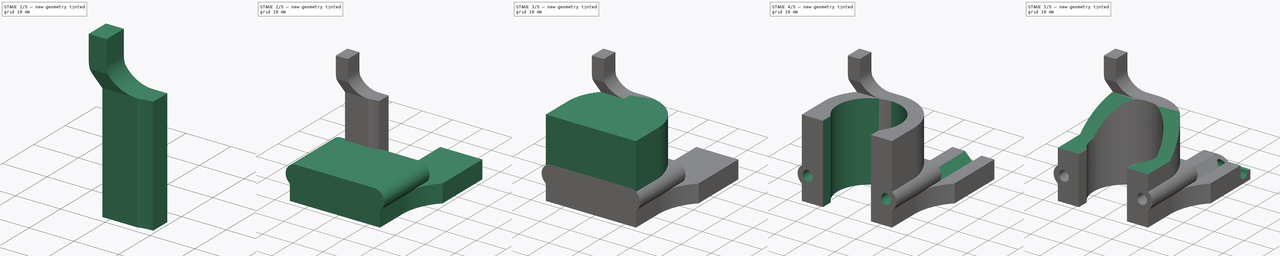
[diagram: build sequence overview — one tinted view per stage of 5, left to right]
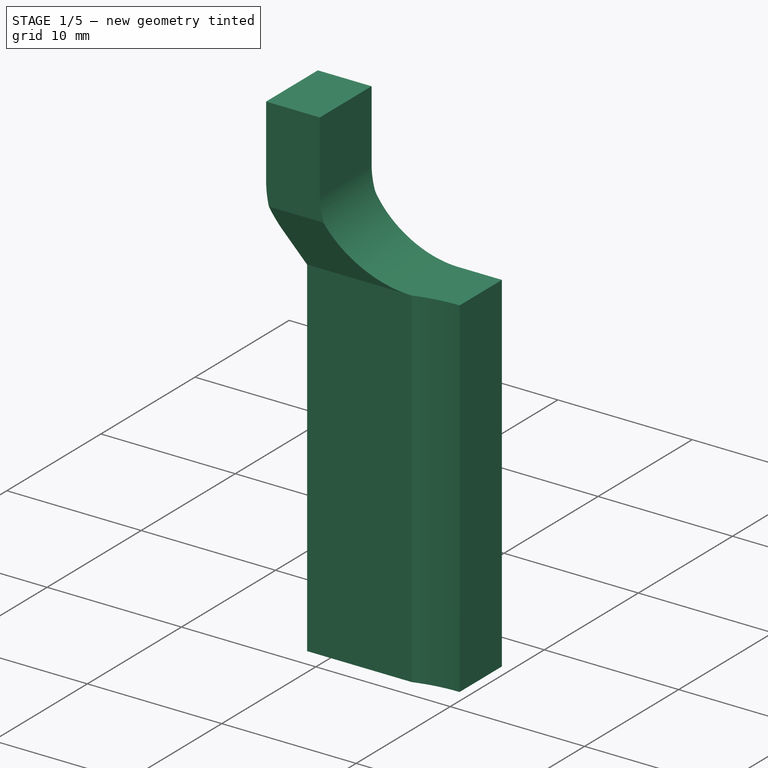
[diagram: stage 1 of 5 — iso view after this stage's code; geometry added in this stage tinted green]
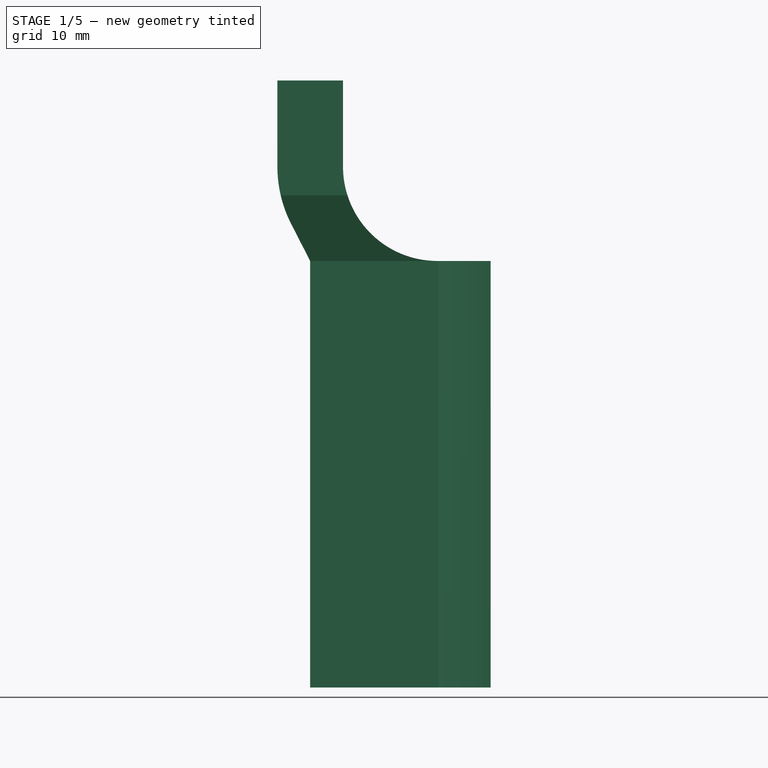
[diagram: stage 1 of 5 — front view after this stage's code; geometry added in this stage tinted green]
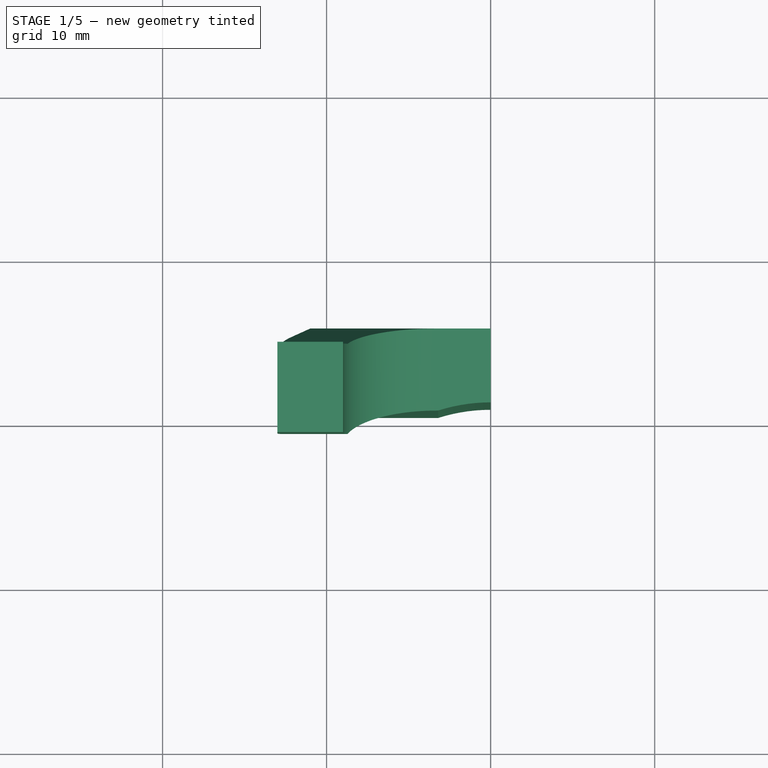
[diagram: stage 1 of 5 — top view after this stage's code; geometry added in this stage tinted green]
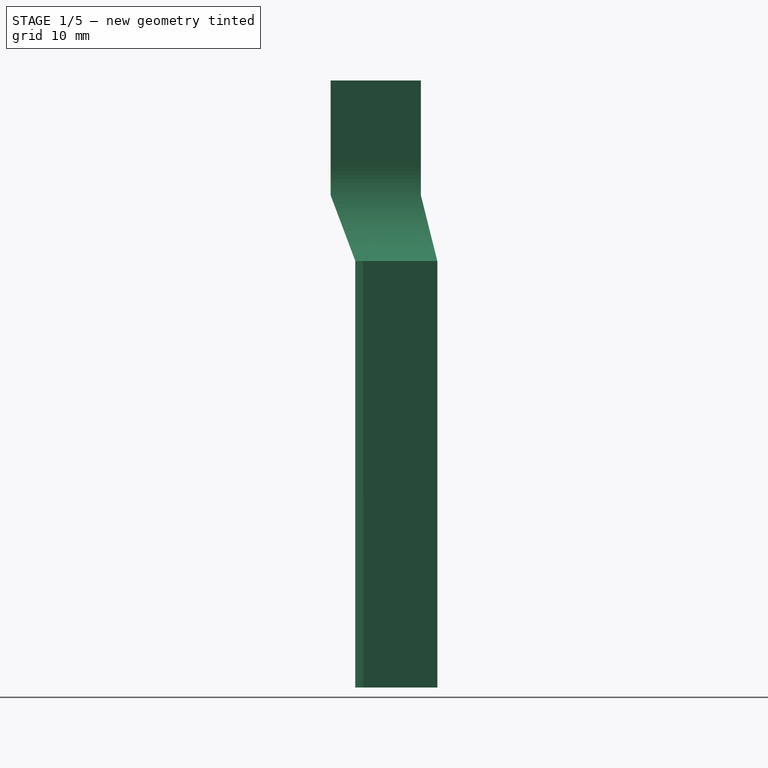
[diagram: stage 1 of 5 — right view after this stage's code; geometry added in this stage tinted green]
FCSTD DOCUMENT  (FreeCAD 0.18R14374 (Git))
Label: 09_550_y-bearing-clamp-tagged
License: All rights reserved
LicenseURL: http://en.wikipedia.org/wiki/All_rights_reserved
objects: Sketcher::SketchObject×12, PartDesign::Pocket×8, PartDesign::Body×5, PartDesign::Pad×4, Spreadsheet::Sheet×1, Part::MultiFuse×1, PartDesign::FeatureBase×1, Part::Fuse×1
note: 44 computed .brp shape members not serialized (recipe doc carries the construction recipe); baked Part::Feature solids carry a one-line shape summary decoded from their .brp

FEATURE [PartDesign::Body] Body005
  BaseFeature = -> Fusion
  Group = -> [BaseFeature,Sketch010,Pocket,Sketch011,Pocket001,Sketch012,Pocket002,Sketch013,Pocket003,Sketch014,Pocket004]
  Origin = -> Origin005
  Tip = -> Pocket004
FEATURE [Sketcher::SketchObject] Sketch015
  AttachmentOffset = pos=(0,0,-19) rot=(0,0,1;0rad)
  MapMode = 5
  Placement = pos=(0,19,0) rot=(1,0,0;1.5708rad)
  Support = -> [XZ_Plane006]
  expr: Constraints[31] = sheet1.BearingCentreX
  expr: Constraints[24] = sheet1.TagTipYStepZlength
  expr: Constraints[26] = sheet1.MainSideX + sheet1.TagBaseDxFromSide
  expr: Constraints[25] = sheet1.TagTipZCurveLength / 2
  expr: Constraints[20] = sheet1.TagTipOffsetX
  expr: Constraints[18] = sheet1.TagTipDx
  expr: Constraints[15] = sheet1.dz
  expr: Constraints[17] = sheet1.TagTipZCurveLength
  expr: AttachmentOffset.Base.z = -sheet1.TagDyFromBase
  expr: Constraints[19] = sheet1.TagDz
  sketch-geometry (11):
    g0: LineSegment StartX=7.84552 StartY=28.25 StartZ=0 EndX=9 EndY=26 EndZ=0
    g1: LineSegment StartX=9 StartY=26 StartZ=0 EndX=9 EndY=0 EndZ=0
    g2: LineSegment StartX=9 StartY=0 StartZ=0 EndX=20 EndY=0 EndZ=0
    g3: LineSegment StartX=20 StartY=0 StartZ=0 EndX=20 EndY=26 EndZ=0
    g4: LineSegment StartX=11 StartY=31.75 StartZ=0 EndX=11 EndY=37 EndZ=0
    g5: LineSegment StartX=11 StartY=37 StartZ=0 EndX=7 EndY=37 EndZ=0
    g6: LineSegment StartX=7 StartY=37 StartZ=0 EndX=7 EndY=31.75 EndZ=0
    g7: ArcOfCircle CenterX=16.75 CenterY=31.75 CenterZ=0 NormalX=0 NormalY=0 NormalZ=1 AngleXU=0 Radius=5.75 StartAngle=3.14159 EndAngle=4.71239
    g8: ArcOfCircle CenterX=14.6668 CenterY=31.75 CenterZ=0 NormalX=0 NormalY=0 NormalZ=1 AngleXU=0 Radius=7.6668 StartAngle=3.14159 EndAngle=3.61567
    g9: LineSegment [constr] StartX=0 StartY=30 StartZ=0 EndX=20 EndY=30 EndZ=0
    g10: LineSegment StartX=16.75 StartY=26 StartZ=0 EndX=20 EndY=26 EndZ=0
  constraints (32):
    c: Coincident(g0,g1)
    c: Coincident(g1,g2)
    c: Coincident(g2,g3)
    c: Coincident(g4,g5)
    c: Coincident(g5,g6)
    c: Tangent(g7,g4) = 1.5708
    c: Vertical(g4)
    c: Vertical(g6)
    c: Vertical(g1)
    c: Vertical(g3)
    c: Horizontal(g5)
    c: Horizontal(g2)
    c: PointOnObject(g1,g-1)
    c: Tangent(g0,g8) = -1.5708
    c: Tangent(g8,g6) = -1.5708
    c: DistanceY(g-1,g3) = 26
    c: Equal(g1,g3)
    c: DistanceY(g0,g6) = 3.5
    c: Distance(g5) = 4
    c: DistanceY(g-1,g5) = 37
    c: Distance(g6,g1) = 2
    c: PointOnObject(g9,g-2)
    c: PointOnObject(g9,g3)
    c: Horizontal(g9)
    c: Distance(g3,g9) = 4
    c: Distance(g0,g9) = 1.75
    c: DistanceX(g-2,g0) = 9
    c: Equal(g6,g4)
    c: Coincident(g10,g3)
    c: Tangent(g10,g7) = -1.5708
    c: Horizontal(g10)
    c: DistanceX(g-2,g2) = 20
FEATURE [PartDesign::Pad] Pad003
  Length = 6.5
  Length2 = 100
  Placement = pos=(0,0,0) rot=(1,0,0;1.5708rad)
  Profile = -> Sketch015
  Reversed = true
  Type = 0
  expr: Length = sheet1.TagDy
FEATURE [Sketcher::SketchObject] Sketch016
  MapMode = 5
  Support = -> [XY_Plane006]
  expr: Constraints[2] = sheet1.BearingCentreY
  expr: Constraints[1] = sheet1.BearingCentreX
  expr: Constraints[0] = sheet1.BearingDiameter / 2
  sketch-geometry (1):
    g0: Circle CenterX=20 CenterY=10.5 CenterZ=0 NormalX=0 NormalY=0 NormalZ=1 AngleXU=0 Radius=10.5
  constraints (3):
    c: Radius(g0) = 10.5
    c: DistanceX(g-2,g0) = 20
    c: DistanceY(g-1,g0) = 10.5
FEATURE [PartDesign::Pocket] Pocket005
  BaseFeature = -> Pad003
  Length = 5
  Length2 = 100
  Placement = pos=(0,0,0) rot=(1,0,0;1.5708rad)
  Profile = -> Sketch016
  Reversed = true
  Type = 1
FEATURE [Sketcher::SketchObject] Sketch017
  MapMode = 5
  Placement = pos=(0,0,0) rot=(0.57735,0.57735,0.57735;2.0944rad)
  Support = -> [YZ_Plane006]
  expr: Constraints[26] = sheet1.TagTipYStepZlength
  expr: Constraints[25] = sheet1.BearingCentreY + sheet1.BearingDiameter / 2 - 0.5
  expr: Constraints[22] = sheet1.TagTipDy
  expr: Constraints[24] = sheet1.TagDz
  expr: Constraints[23] = sheet1.TagTipYStepZlength
  expr: Constraints[21] = sheet1.TagDy
  expr: Constraints[16] = sheet1.dz
  expr: Constraints[8] = sheet1.TagDyFromBase
  sketch-geometry (9):
    g0: LineSegment StartX=20.5 StartY=0 StartZ=0 EndX=20.5 EndY=26 EndZ=0
    g1: LineSegment StartX=20.5 StartY=26 StartZ=0 EndX=19 EndY=30 EndZ=0
    g2: LineSegment StartX=19 StartY=30 StartZ=0 EndX=19 EndY=0 EndZ=0
    g3: LineSegment StartX=19 StartY=0 StartZ=0 EndX=20.5 EndY=0 EndZ=0
    g4: LineSegment StartX=25.5 StartY=26 StartZ=0 EndX=24.5 EndY=30 EndZ=0
    g5: LineSegment StartX=24.5 StartY=30 StartZ=0 EndX=24.5 EndY=37 EndZ=0
    g6: LineSegment StartX=24.5 StartY=37 StartZ=0 EndX=25.5 EndY=37 EndZ=0
    g7: LineSegment StartX=25.5 StartY=37 StartZ=0 EndX=25.5 EndY=26 EndZ=0
    g8: LineSegment [constr] StartX=25.5 StartY=26 StartZ=0 EndX=25.5 EndY=0 EndZ=0
  constraints (27):
    c: Coincident(g0,g1)
    c: Coincident(g1,g2)
    c: Coincident(g2,g3)
    c: Vertical(g2)
    c: Vertical(g0)
    c: Horizontal(g3)
    c: Coincident(g3,g0)
    c: PointOnObject(g2,g-1)
    c: DistanceX(g-2,g2) = 19
    c: Coincident(g4,g5)
    c: Coincident(g5,g6)
    c: Coincident(g6,g7)
    c: Coincident(g4,g7)
    c: Vertical(g5)
    c: Vertical(g7)
    c: Horizontal(g6)
    c: DistanceY(g-1,g4) = 26
    c: PointOnObject(g8,g-1)
    c: Vertical(g8)
    c: Coincident(g8,g4)
    c: Equal(g0,g8)
    c: Distance(g6,g2) = 6.5
    c: DistanceX(g1,g5) = 5.5
    c: DistanceY(g4,g4) = 4
    c: DistanceY(g-1,g6) = 37
    c: DistanceX(g-2,g0) = 20.5
    c: DistanceY(g0,g1) = 4
FEATURE [PartDesign::Pocket] Pocket006
  BaseFeature = -> Pocket005
  Length = 5
  Length2 = 100
  Placement = pos=(0,0,0) rot=(1,0,0;1.5708rad)
  Profile = -> Sketch017
  Reversed = true
  Type = 1
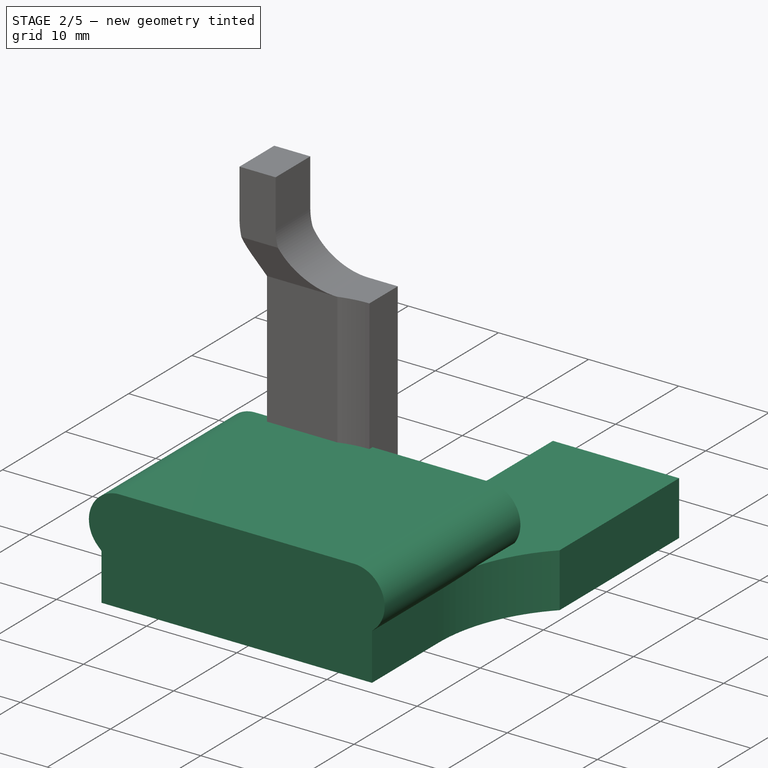
[diagram: stage 2 of 5 — iso view after this stage's code; geometry added in this stage tinted green]
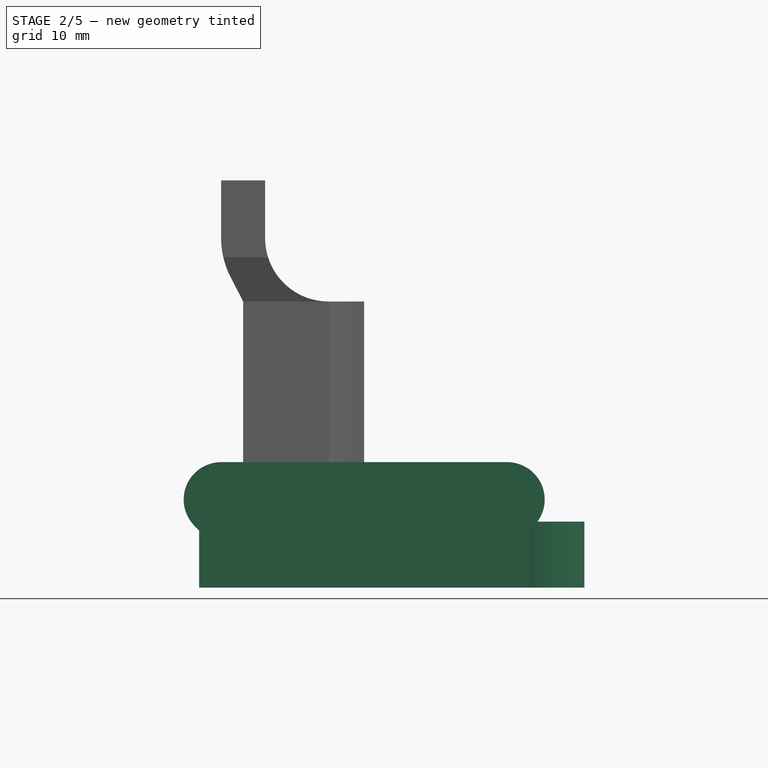
[diagram: stage 2 of 5 — front view after this stage's code; geometry added in this stage tinted green]
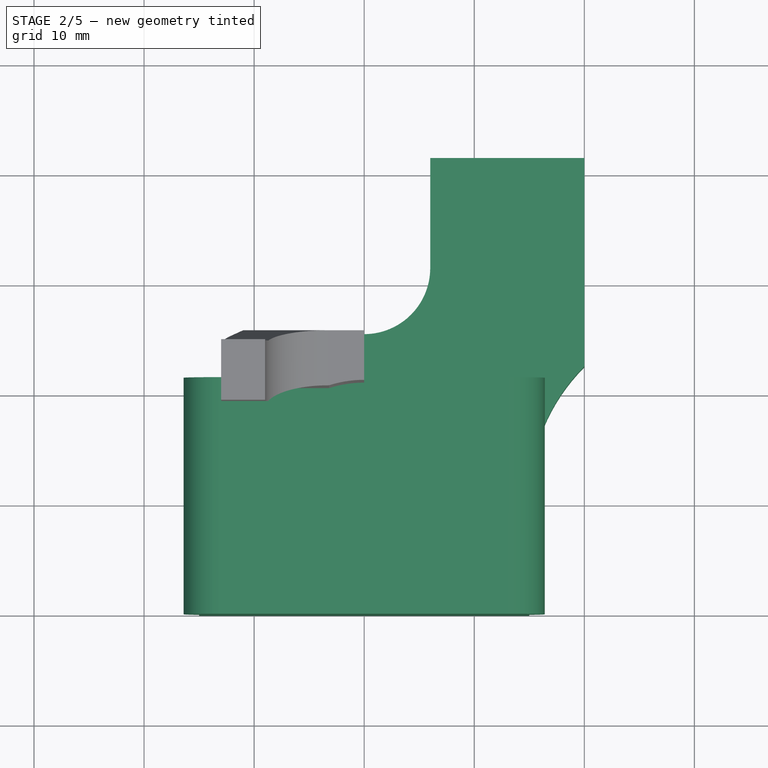
[diagram: stage 2 of 5 — top view after this stage's code; geometry added in this stage tinted green]
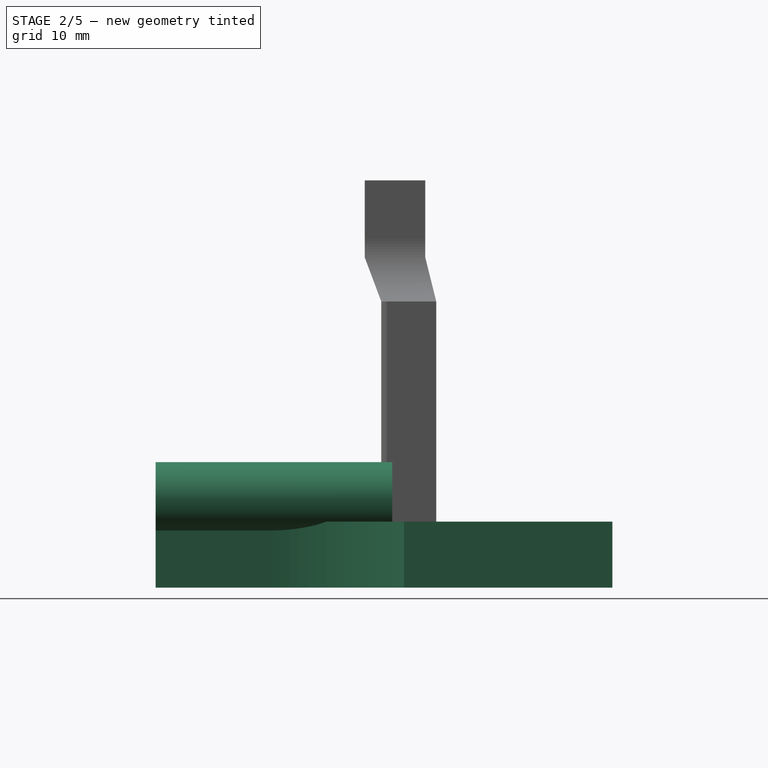
[diagram: stage 2 of 5 — right view after this stage's code; geometry added in this stage tinted green]
FEATURE [PartDesign::Body] Body  label="MainBody"
  Group = -> [Sketch,Pad]
  Origin = -> Origin
  Tip = -> Pad
FEATURE [Sketcher::SketchObject] Sketch006
  MapMode = 5
  Placement = pos=(0,0,0) rot=(1,0,0;1.5708rad)
  Support = -> [XZ_Plane001]
  expr: Constraints[9] = sheet1.Bolt1Z
  expr: Constraints[8] = sheet1.Bolt0Z
  expr: Constraints[6] = sheet1.Bolt1X
  expr: Constraints[0] = sheet1.BoltBossDiameter / 2
  expr: Constraints[7] = sheet1.Bolt0X
  sketch-geometry (6):
    g0: ArcOfCircle CenterX=7 CenterY=8 CenterZ=0 NormalX=0 NormalY=0 NormalZ=1 AngleXU=0 Radius=3.4 StartAngle=1.5708 EndAngle=3.92699
    g1: ArcOfCircle CenterX=33 CenterY=8 CenterZ=0 NormalX=0 NormalY=0 NormalZ=1 AngleXU=0 Radius=3.4 StartAngle=5.49779 EndAngle=7.85398
    g2: LineSegment StartX=10.1917 StartY=0 StartZ=0 EndX=4.59584 EndY=5.59584 EndZ=0
    g3: LineSegment StartX=33 StartY=11.4 StartZ=0 EndX=7 EndY=11.4 EndZ=0
    g4: LineSegment StartX=29.8083 StartY=0 StartZ=0 EndX=35.4042 EndY=5.59584 EndZ=0
    g5: LineSegment StartX=10.1917 StartY=0 StartZ=0 EndX=29.8083 EndY=0 EndZ=0
  constraints (16):
    c: Radius(g1) = 3.4
    c: Tangent(g2,g0) = 1.5708
    c: Tangent(g4,g1) = -1.5708
    c: Angle(g4,g-1) = 2.35619
    c: Coincident(g5,g4)
    c: PointOnObject(g4,g-1)
    c: DistanceX(g-2,g1) = 33
    c: DistanceX(g-2,g0) = 7
    c: DistanceY(g-1,g0) = 8
    c: DistanceY(g-1,g1) = 8
    c: Equal(g0,g1)
    c: Angle(g2,g-1) = 0.785398
    c: Coincident(g2,g5)
    c: Tangent(g0,g3) = -1.5708
    c: Tangent(g3,g1) = -1.5708
    c: PointOnObject(g2,g-1)
FEATURE [PartDesign::Pad] Pad001
  Length = 21.5
  Length2 = 100
  Placement = pos=(0,0,0) rot=(1,0,0;1.5708rad)
  Profile = -> Sketch006
  Reversed = true
  Type = 0
  expr: Length = sheet1.BearingClampBoltFaceY
FEATURE [PartDesign::Body] Body001  label="BoltPairBoss"
  Group = -> [Sketch006,Pad001]
  Origin = -> Origin001
  Tip = -> Pad001
FEATURE [Sketcher::SketchObject] Sketch007  label="SideBoss001"
  MapMode = 5
  Support = -> [XY_Plane002]
  expr: Constraints[12] = sheet1.ShellBaseCut
  expr: Constraints[19] = sheet1.BearingDiameter / 2 + sheet1.BearingCaseShellThickness
  expr: Constraints[4] = sheet1.BearingDiameter / 2
  expr: Constraints[10] = sheet1.BearingCentreY
  expr: Constraints[11] = sheet1.BearingCentreX
  expr: Constraints[41] = sheet1.dy
  sketch-geometry (17):
    g0: ArcOfCircle [constr] CenterX=20 CenterY=10.5 CenterZ=0 NormalX=0 NormalY=0 NormalZ=1 AngleXU=0 Radius=10.5 StartAngle=5.57864 EndAngle=10.1293
    g1: LineSegment [constr] StartX=12 StartY=3.69926 StartZ=0 EndX=12 EndY=0 EndZ=0
    g2: LineSegment [constr] StartX=28 StartY=3.69926 StartZ=0 EndX=28 EndY=0 EndZ=0
    g3: LineSegment [constr] StartX=20 StartY=10.5 StartZ=0 EndX=20 EndY=0 EndZ=0
    g4: ArcOfCircle [constr] CenterX=20 CenterY=10.5 CenterZ=0 NormalX=0 NormalY=0 NormalZ=1 AngleXU=0 Radius=15 StartAngle=0 EndAngle=1.5708
    g5: LineSegment StartX=5 StartY=0 StartZ=0 EndX=5 EndY=10.5 EndZ=0
    g6: LineSegment StartX=35 StartY=0 StartZ=0 EndX=35 EndY=10.5 EndZ=0
    g7: LineSegment [constr] StartX=5 StartY=0 StartZ=0 EndX=12 EndY=0 EndZ=0
    g8: LineSegment [constr] StartX=28 StartY=0 StartZ=0 EndX=35 EndY=0 EndZ=0
    g9: LineSegment StartX=5 StartY=0 StartZ=0 EndX=35 EndY=0 EndZ=0
    g10: ArcOfCircle CenterX=52.0711 CenterY=10.5 CenterZ=0 NormalX=0 NormalY=0 NormalZ=1 AngleXU=0 Radius=17.0711 StartAngle=2.35619 EndAngle=3.14159
    g11: LineSegment [constr] StartX=40 StartY=22.5711 StartZ=0 EndX=47.0711 EndY=29.6421 EndZ=0
    g12: ArcOfCircle CenterX=20 CenterY=10.5 CenterZ=0 NormalX=0 NormalY=0 NormalZ=1 AngleXU=0 Radius=15 StartAngle=1.5708 EndAngle=3.14159
    g13: LineSegment StartX=40 StartY=22.5711 StartZ=0 EndX=40 EndY=41.5 EndZ=0
    g14: LineSegment StartX=40 StartY=41.5 StartZ=0 EndX=26 EndY=41.5 EndZ=0
    g15: LineSegment StartX=26 StartY=41.5 StartZ=0 EndX=26 EndY=31.5 EndZ=0
    g16: ArcOfCircle CenterX=20 CenterY=31.5 CenterZ=0 NormalX=0 NormalY=0 NormalZ=1 AngleXU=0 Radius=6 StartAngle=4.71239 EndAngle=6.28319
  constraints (45):
    c: Vertical(g1)
    c: Vertical(g2)
    c: Coincident(g0,g1)
    c: Coincident(g0,g2)
    c: Radius(g0) = 10.5
    c: Equal(g2,g1)
    c: PointOnObject(g1,g-1)
    c: PointOnObject(g3,g-1)
    c: Coincident(g3,g0)
    c: Symmetric(g1,g2,g3)
    c: DistanceY(g-1,g0) = 10.5
    c: DistanceX(g-2,g0) = 20
    c: Distance(g1,g2) = 16
    c: Coincident(g0,g4)
    c: Vertical(g5)
    c: Vertical(g6)
    c: PointOnObject(g5,g-1)
    c: PointOnObject(g6,g-1)
    c: Tangent(g4,g6) = -1.5708
    c: Radius(g4) = 15
    c: Coincident(g8,g6)
    c: Coincident(g8,g2)
    c: Coincident(g7,g1)
    c: Coincident(g7,g5)
    c: Coincident(g9,g5)
    c: Coincident(g9,g6)
    c: Tangent(g4,g10) = 1.5708
    c: Angle(g11,g-2) = 0.785398
    c: Tangent(g10,g11) = 1.5708
    c: Distance(g10,g6) = 5
    c: Distance(g11) = 10
    c: Coincident(g12,g4)
    c: Tangent(g5,g12) = 1.5708
    c: Tangent(g4,g12) = -1.5708
    c: Coincident(g13,g14)
    c: Coincident(g14,g15)
    c: Vertical(g15)
    c: Vertical(g13)
    c: Horizontal(g14)
    c: Coincident(g10,g13)
    c: Distance(g14) = 14
    c: DistanceY(g-1,g13) = 41.5
    c: Tangent(g4,g16) = 1.5708
    c: Tangent(g16,g15) = 1.5708
    c: PointOnObject(g4,g3)
FEATURE [PartDesign::Pad] Pad002
  Length = 6
  Length2 = 100
  Profile = -> Sketch007
  Type = 0
  expr: Length = sheet1.SideBossDepth
FEATURE [Sketcher::SketchObject] Sketch018  label="BoltPairClearanceCut005"
  AttachmentOffset = pos=(0,0,-41.5) rot=(0,0,1;0rad)
  MapMode = 5
  Placement = pos=(0,41.5,0) rot=(1,0,0;1.5708rad)
  Support = -> [XZ_Plane006]
  expr: Constraints[11] = sheet1.BoltBossDiameter / 2
  expr: Constraints[9] = sheet1.Bolt0X
  expr: Constraints[8] = sheet1.Bolt0Z
  expr: Constraints[19] = sheet1.Bolt1Z
  expr: AttachmentOffset.Base.z = -sheet1.dy
  expr: Constraints[10] = sheet1.M3Clearance / 2
  expr: Constraints[18] = sheet1.Bolt1X
  sketch-geometry (8):
    g0: ArcOfCircle [constr] CenterX=7 CenterY=8 CenterZ=0 NormalX=0 NormalY=0 NormalZ=1 AngleXU=0 Radius=1.65 StartAngle=2.35619 EndAngle=7.06858
    g1: LineSegment [constr] StartX=5.83327 StartY=9.16673 StartZ=0 EndX=6.5 EndY=9.83345 EndZ=0
    g2: LineSegment [constr] StartX=6.5 StartY=9.83345 StartZ=0 EndX=7.5 EndY=9.83345 EndZ=0
    g3: LineSegment [constr] StartX=7.5 StartY=9.83345 StartZ=0 EndX=8.16673 EndY=9.16673 EndZ=0
    g4: ArcOfCircle CenterX=33 CenterY=8 CenterZ=0 NormalX=0 NormalY=0 NormalZ=1 AngleXU=0 Radius=3.4 StartAngle=5.49779 EndAngle=10.2102
    g5: LineSegment StartX=30.5958 StartY=5.59584 StartZ=0 EndX=33 EndY=3.19167 EndZ=0
    g6: LineSegment StartX=33 StartY=3.19167 StartZ=0 EndX=35.4042 EndY=5.59584 EndZ=0
    g7: Circle CenterX=7 CenterY=8 CenterZ=0 NormalX=0 NormalY=0 NormalZ=1 AngleXU=0 Radius=3.4
  constraints (22):
    c: Coincident(g1,g2)
    c: Coincident(g2,g3)
    c: Tangent(g0,g1) = 1.5708
    c: Tangent(g0,g3) = 1.5708
    c: Equal(g1,g3)
    c: Horizontal(g2)
    c: Distance(g2) = 1
    c: Angle(g1,g2) = 2.35619
    c: DistanceY(g-1,g0) = 8
    c: DistanceX(g-2,g0) = 7
    c: Radius(g0) = 1.65
    c: Radius(g4) = 3.4
    c: Coincident(g5,g6)
    c: Equal(g6,g5)
    c: Perpendicular(g6,g5)
    c: Tangent(g5,g4) = -1.5708
    c: Tangent(g6,g4) = -1.5708
    c: Angle(g5,g-1) = 0.785398
    c: DistanceX(g-2,g4) = 33
    c: DistanceY(g-1,g4) = 8
    c: Coincident(g7,g0)
    c: Equal(g7,g4)
FEATURE [PartDesign::Pocket] Pocket007
  BaseFeature = -> Pocket006
  Length = 20
  Length2 = 100
  Placement = pos=(0,0,0) rot=(1,0,0;1.5708rad)
  Profile = -> Sketch018
  Reversed = true
  Type = 0
  expr: Length = sheet1.dy - sheet1.BearingClampBoltFaceY
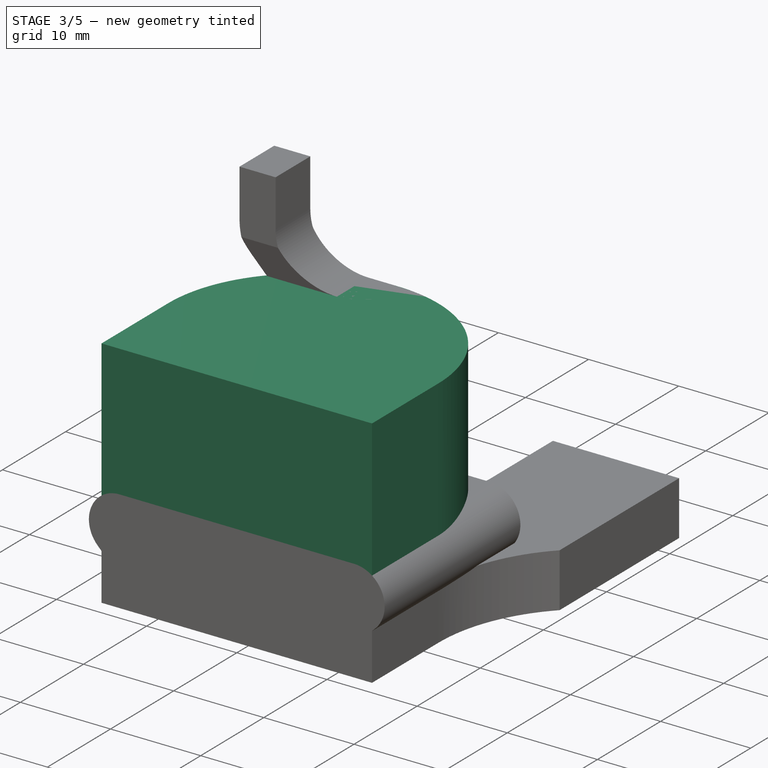
[diagram: stage 3 of 5 — iso view after this stage's code; geometry added in this stage tinted green]
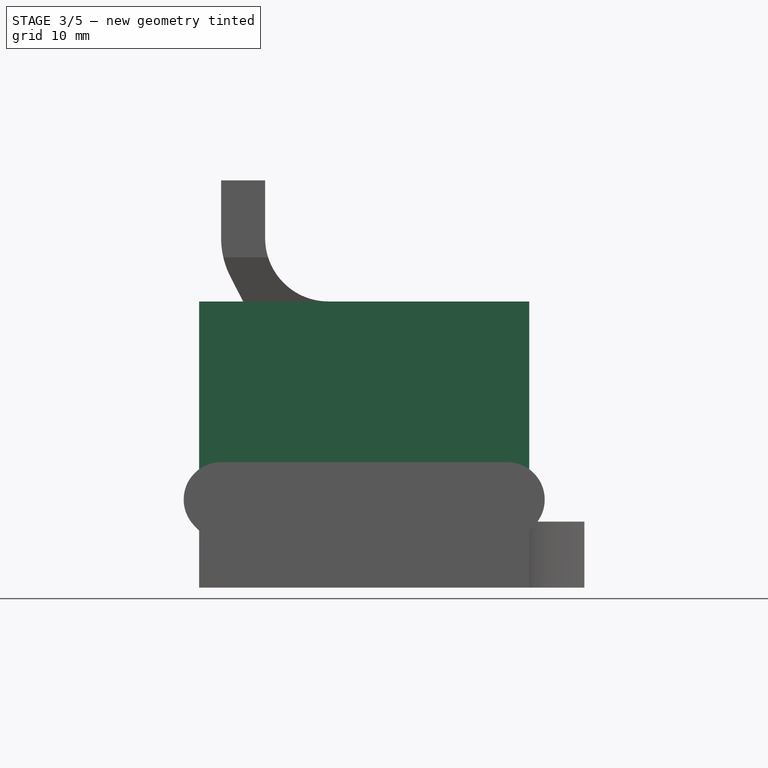
[diagram: stage 3 of 5 — front view after this stage's code; geometry added in this stage tinted green]
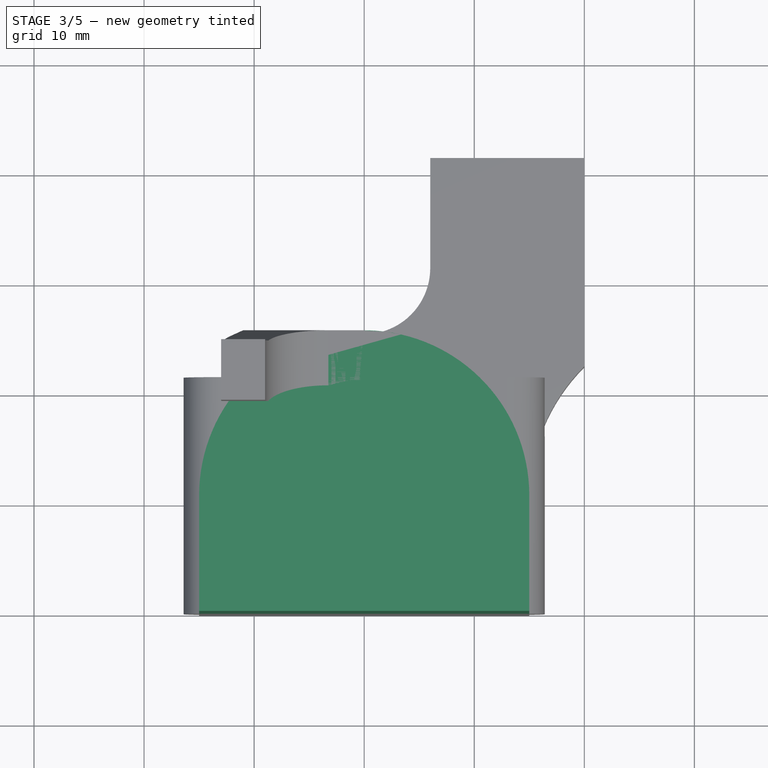
[diagram: stage 3 of 5 — top view after this stage's code; geometry added in this stage tinted green]
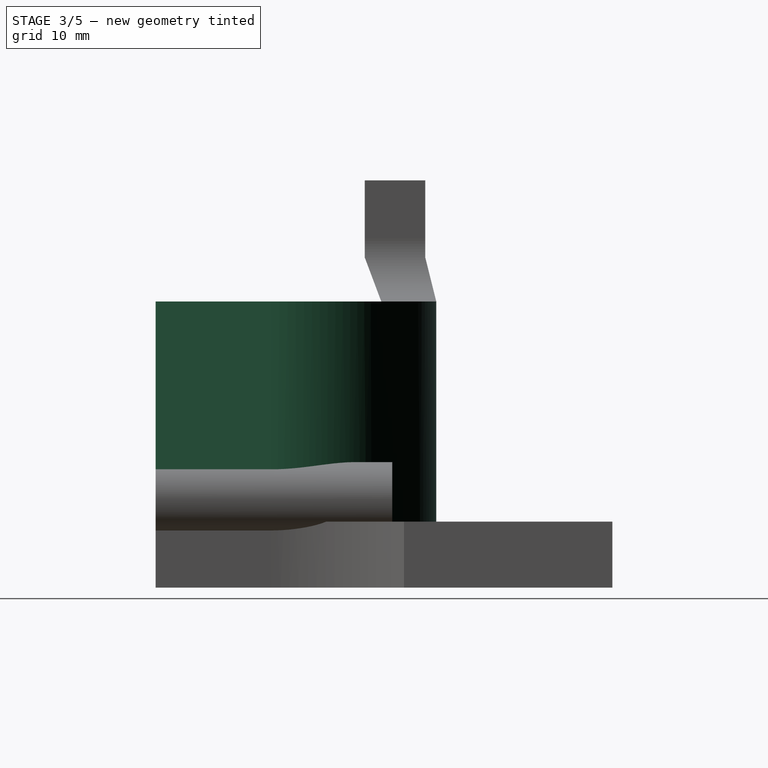
[diagram: stage 3 of 5 — right view after this stage's code; geometry added in this stage tinted green]
FEATURE [Spreadsheet::Sheet] Spreadsheet  label="sheet1"
  cells = A1=dx; A2=dy; B2(dy)=41.5; A3=dz; B3(dz)=26; A4=M3Clearance; B4(M3Clearance)=3.2999999999999998; A5=BearingClampBoltFaceY; B5(BearingClampBoltFaceY)=21.5; A6=BeltGroveBaseY; B6(BeltGroveBaseY)=27.5; A7=BeltClampBossX; B7(BeltClampBossX)=11; A8=BeltSlotMinX; B8(BeltSlotMinX)=22.350000000000001; A9=BeltSlotDX; B9(BeltSlotDX)=2; A10=BeltBossMinX; B10(BeltBossMinX)=18; A11=BeltBossMaxY; B11(BeltBossMaxY)=35.5; A12=BearingCentreX; B12(BearingCentreX)=20; A13=BearingCentreY; B13(BearingCentreY)=10.5; A14=BearingDiameter; B14(BearingDiameter)=21; A15=BearingCaseShellThickness; B15(BearingCaseShellThickness)=4.5; A16=ShellBaseCut; B16(ShellBaseCut)=16; A17=FirstCurveFinal; B17(FirstCurveFinal)=21.199999999999999; A18=Bolt0X; B18(Bolt0X)=7; A19=Bolt0Z; B19(Bolt0Z)=8; A20=Bolt1X; B20(Bolt1X)=33; A21=Bolt1Z; B21(Bolt1Z)=8; A22=BoltBossDiameter; B22(BoltBossDiameter)=6.7999999999999998; A23=SideBoltY; B23(SideBoltY)=38.5; A24=SideBoltZ; B24(SideBoltZ)=3; A25=BeltChamferDepth; B25(BeltChamferDepth)=2; A26=BeltChamferX; B26(BeltChamferX)=0.5; A27=SideBossDepth; B27(SideBossDepth)=6; A28=TagBaseDxFromSide; B28(TagBaseDxFromSide)=4; A29=TagTipDxFromSide; B29(TagTipDxFromSide)=2; A30=TagDyFromBase; B30(TagDyFromBase)=19; A31=TagDy; B31(TagDy)=6.5; A32="TagBaseDx"; B32(TagBaseDx)=7; A33=TagTipDx; B33(TagTipDx)=4; A34=TagTipDy; B34(TagTipDy)=5.5; A35=TagTipZCurveLength; B35(TagTipZCurveLength)=3.5; A36=TagTipYStepZlength; B36(TagTipYStepZlength)=4; A37=TagDz; B37(TagDz)=37; A38=TagTipOffsetX; B38(TagTipOffsetX)=2; A39=MainSideX; B39(MainSideX)==BearingCentreX - BearingDiameter / 2 - BearingCaseShellThickness
FEATURE [Sketcher::SketchObject] Sketch
  MapMode = 5
  Support = -> [XY_Plane]
  expr: Constraints[4] = sheet1.BearingDiameter / 2
  expr: Constraints[11] = sheet1.BearingCentreX
  expr: Constraints[12] = sheet1.ShellBaseCut
  expr: Constraints[10] = sheet1.BearingCentreY
  sketch-geometry (10):
    g0: ArcOfCircle [constr] CenterX=20 CenterY=10.5 CenterZ=0 NormalX=0 NormalY=0 NormalZ=1 AngleXU=0 Radius=10.5 StartAngle=5.57864 EndAngle=10.1293
    g1: LineSegment [constr] StartX=12 StartY=3.69926 StartZ=0 EndX=12 EndY=0 EndZ=0
    g2: LineSegment [constr] StartX=28 StartY=3.69926 StartZ=0 EndX=28 EndY=0 EndZ=0
    g3: LineSegment [constr] StartX=20 StartY=10.5 StartZ=0 EndX=20 EndY=0 EndZ=0
    g4: ArcOfCircle CenterX=20 CenterY=10.5 CenterZ=0 NormalX=0 NormalY=0 NormalZ=1 AngleXU=0 Radius=15 StartAngle=0 EndAngle=3.14159
    g5: LineSegment StartX=5 StartY=0 StartZ=0 EndX=5 EndY=10.5 EndZ=0
    g6: LineSegment StartX=35 StartY=0 StartZ=0 EndX=35 EndY=10.5 EndZ=0
    g7: LineSegment [constr] StartX=5 StartY=0 StartZ=0 EndX=12 EndY=0 EndZ=0
    g8: LineSegment [constr] StartX=28 StartY=0 StartZ=0 EndX=35 EndY=0 EndZ=0
    g9: LineSegment StartX=5 StartY=0 StartZ=0 EndX=35 EndY=0 EndZ=0
  constraints (27):
    c: Vertical(g1)
    c: Vertical(g2)
    c: Coincident(g0,g1)
    c: Coincident(g0,g2)
    c: Radius(g0) = 10.5
    c: Equal(g2,g1)
    c: PointOnObject(g1,g-1)
    c: PointOnObject(g3,g-1)
    c: Coincident(g3,g0)
    c: Symmetric(g1,g2,g3)
    c: DistanceY(g-1,g0) = 10.5
    c: DistanceX(g-2,g0) = 20
    c: Distance(g1,g2) = 16
    c: Coincident(g0,g4)
    c: Vertical(g5)
    c: Vertical(g6)
    c: PointOnObject(g5,g-1)
    c: PointOnObject(g6,g-1)
    c: Tangent(g4,g5) = 1.5708
    c: Coincident(g8,g6)
    c: Coincident(g8,g2)
    c: Coincident(g7,g1)
    c: Coincident(g7,g5)
    c: Coincident(g9,g5)
    c: Coincident(g9,g6)
    c: Radius(g4) = 15
    c: Tangent(g4,g6) = -1.5708
FEATURE [PartDesign::Pad] Pad
  Length = 26
  Length2 = 100
  Profile = -> Sketch
  Type = 0
  expr: Length = sheet1.dz
FEATURE [PartDesign::Body] Body002  label="SideBoltBoss"
  Group = -> [Sketch007,Pad002]
  Origin = -> Origin002
  Tip = -> Pad002
FEATURE [Part::MultiFuse] Fusion
  Shapes = -> [Body,Body001,Body002]
FEATURE [Sketcher::SketchObject] Sketch010  label="BoltPairClearanceCut003"
  AttachmentOffset = pos=(0,0,-41.5) rot=(0,0,1;0rad)
  MapMode = 5
  Placement = pos=(0,41.5,4e-12) rot=(1,0,0;1.5708rad)
  Support = -> [XZ_Plane005]
  expr: Constraints[11] = sheet1.BoltBossDiameter / 2
  expr: Constraints[9] = sheet1.Bolt0X
  expr: Constraints[8] = sheet1.Bolt0Z
  expr: Constraints[19] = sheet1.Bolt1Z
  expr: AttachmentOffset.Base.z = -sheet1.dy
  expr: Constraints[10] = sheet1.M3Clearance / 2
  expr: Constraints[18] = sheet1.Bolt1X
  sketch-geometry (8):
    g0: ArcOfCircle [constr] CenterX=7 CenterY=8 CenterZ=0 NormalX=0 NormalY=0 NormalZ=1 AngleXU=0 Radius=1.65 StartAngle=2.35619 EndAngle=7.06858
    g1: LineSegment [constr] StartX=5.83327 StartY=9.16673 StartZ=0 EndX=6.5 EndY=9.83345 EndZ=0
    g2: LineSegment [constr] StartX=6.5 StartY=9.83345 StartZ=0 EndX=7.5 EndY=9.83345 EndZ=0
    g3: LineSegment [constr] StartX=7.5 StartY=9.83345 StartZ=0 EndX=8.16673 EndY=9.16673 EndZ=0
    g4: ArcOfCircle CenterX=33 CenterY=8 CenterZ=0 NormalX=0 NormalY=0 NormalZ=1 AngleXU=0 Radius=3.4 StartAngle=5.49779 EndAngle=10.2102
    g5: LineSegment StartX=30.5958 StartY=5.59584 StartZ=0 EndX=33 EndY=3.19167 EndZ=0
    g6: LineSegment StartX=33 StartY=3.19167 StartZ=0 EndX=35.4042 EndY=5.59584 EndZ=0
    g7: Circle CenterX=7 CenterY=8 CenterZ=0 NormalX=0 NormalY=0 NormalZ=1 AngleXU=0 Radius=3.4
  constraints (22):
    c: Coincident(g1,g2)
    c: Coincident(g2,g3)
    c: Tangent(g0,g1) = 1.5708
    c: Tangent(g0,g3) = 1.5708
    c: Equal(g1,g3)
    c: Horizontal(g2)
    c: Distance(g2) = 1
    c: Angle(g1,g2) = 2.35619
    c: DistanceY(g-1,g0) = 8
    c: DistanceX(g-2,g0) = 7
    c: Radius(g0) = 1.65
    c: Radius(g4) = 3.4
    c: Coincident(g5,g6)
    c: Equal(g6,g5)
    c: Perpendicular(g6,g5)
    c: Tangent(g5,g4) = -1.5708
    c: Tangent(g6,g4) = -1.5708
    c: Angle(g5,g-1) = 0.785398
    c: DistanceX(g-2,g4) = 33
    c: DistanceY(g-1,g4) = 8
    c: Coincident(g7,g0)
    c: Equal(g7,g4)
FEATURE [PartDesign::FeatureBase] BaseFeature
  BaseFeature = -> Fusion
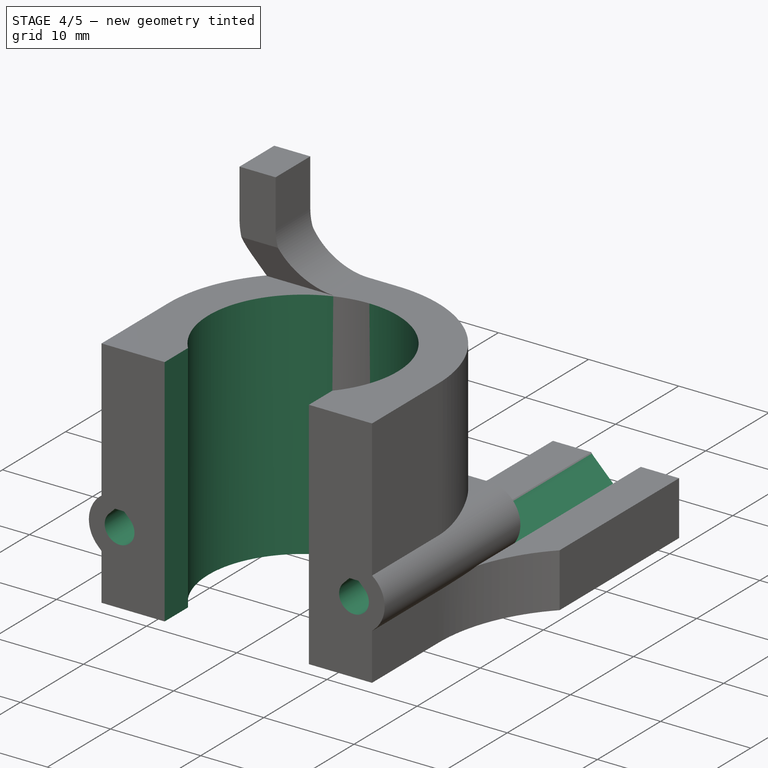
[diagram: stage 4 of 5 — iso view after this stage's code; geometry added in this stage tinted green]
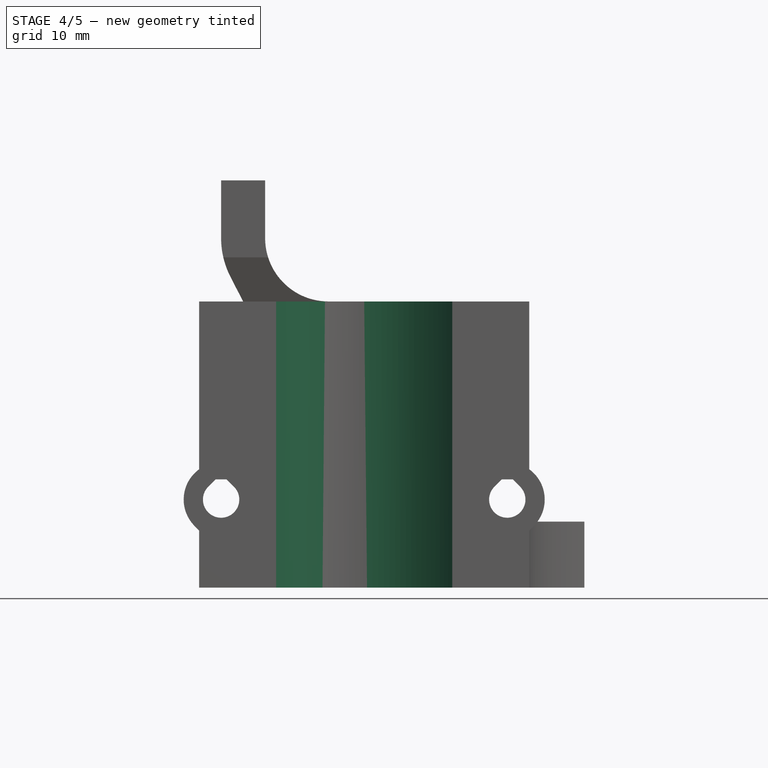
[diagram: stage 4 of 5 — front view after this stage's code; geometry added in this stage tinted green]
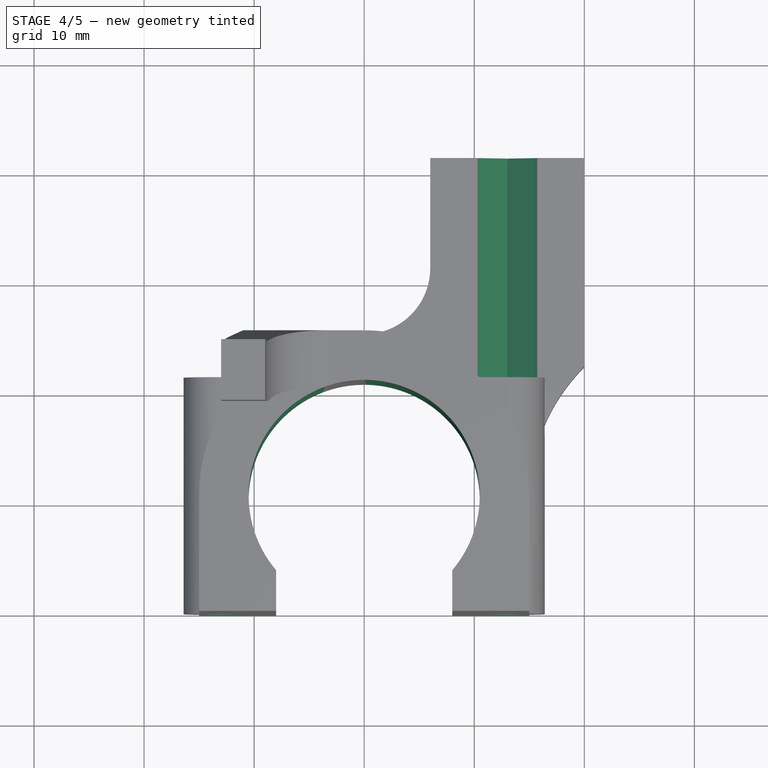
[diagram: stage 4 of 5 — top view after this stage's code; geometry added in this stage tinted green]
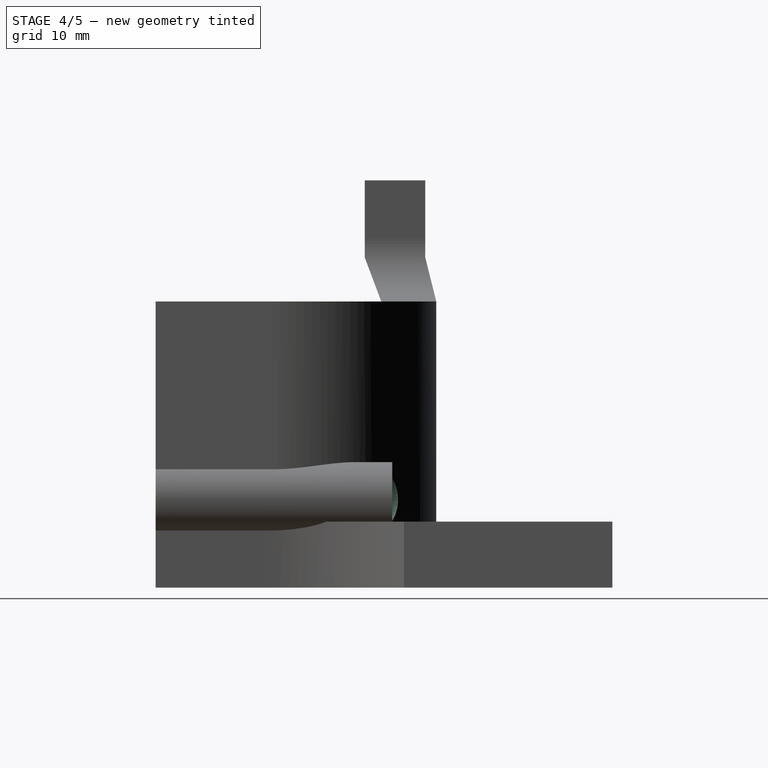
[diagram: stage 4 of 5 — right view after this stage's code; geometry added in this stage tinted green]
FEATURE [PartDesign::Pocket] Pocket
  BaseFeature = -> BaseFeature
  Length = 20
  Length2 = 100
  Profile = -> Sketch010
  Reversed = true
  Type = 0
  expr: Length = sheet1.dy - sheet1.BearingClampBoltFaceY
FEATURE [Sketcher::SketchObject] Sketch011
  MapMode = 5
  Support = -> [XY_Plane005]
  expr: Constraints[48] = sheet1.BeltBossMaxY
  expr: Constraints[49] = sheet1.BeltChamferDepth
  expr: Constraints[47] = sheet1.BeltBossMinX
  expr: Constraints[50] = sheet1.BeltChamferX
  expr: Constraints[46] = sheet1.BeltGroveBaseY
  expr: Constraints[70] = sheet1.dy
  expr: Constraints[44] = sheet1.BeltSlotDX
  expr: Constraints[45] = sheet1.BeltClampBossX
  expr: Constraints[43] = sheet1.BeltSlotMinX
  expr: Constraints[22] = sheet1.BearingDiameter / 2 + sheet1.BearingCaseShellThickness
  expr: Constraints[12] = sheet1.ShellBaseCut
  expr: Constraints[4] = sheet1.BearingDiameter / 2
  expr: Constraints[10] = sheet1.BearingCentreY
  expr: Constraints[11] = sheet1.BearingCentreX
  sketch-geometry (26):
    g0: ArcOfCircle CenterX=20 CenterY=10.5 CenterZ=0 NormalX=0 NormalY=0 NormalZ=1 AngleXU=0 Radius=10.5 StartAngle=5.57864 EndAngle=10.1293
    g1: LineSegment StartX=12 StartY=3.69926 StartZ=0 EndX=12 EndY=0 EndZ=0
    g2: LineSegment StartX=28 StartY=3.69926 StartZ=0 EndX=28 EndY=0 EndZ=0
    g3: LineSegment [constr] StartX=20 StartY=10.5 StartZ=0 EndX=20 EndY=0 EndZ=0
    g4: ArcOfCircle [constr] CenterX=20 CenterY=10.5 CenterZ=0 NormalX=0 NormalY=0 NormalZ=1 AngleXU=0 Radius=15 StartAngle=1.70453 EndAngle=3.14159
    g5: ArcOfCircle [constr] CenterX=20 CenterY=10.5 CenterZ=0 NormalX=0 NormalY=0 NormalZ=1 AngleXU=0 Radius=15 StartAngle=0 EndAngle=0.927295
    g6: LineSegment [constr] StartX=5 StartY=0 StartZ=0 EndX=5 EndY=10.5 EndZ=0
    g7: LineSegment [constr] StartX=35 StartY=0 StartZ=0 EndX=35 EndY=10.5 EndZ=0
    g8: LineSegment [constr] StartX=18 StartY=25.3661 StartZ=0 EndX=18 EndY=35.5 EndZ=0
    g9: LineSegment [constr] StartX=18 StartY=35.5 StartZ=0 EndX=21.85 EndY=35.5 EndZ=0
    g10: LineSegment [constr] StartX=22.35 StartY=27.5 StartZ=0 EndX=24.35 EndY=27.5 EndZ=0
    g11: LineSegment [constr] StartX=24.85 StartY=35.5 StartZ=0 EndX=29 EndY=35.5 EndZ=0
    g12: LineSegment [constr] StartX=29 StartY=35.5 StartZ=0 EndX=29 EndY=22.5 EndZ=0
    g13: LineSegment [constr] StartX=22.35 StartY=27.5 StartZ=0 EndX=22.35 EndY=33.5 EndZ=0
    g14: LineSegment [constr] StartX=22.35 StartY=33.5 StartZ=0 EndX=21.85 EndY=35.5 EndZ=0
    g15: LineSegment [constr] StartX=24.35 StartY=27.5 StartZ=0 EndX=24.35 EndY=33.5 EndZ=0
    g16: LineSegment [constr] StartX=24.35 StartY=33.5 StartZ=0 EndX=24.85 EndY=35.5 EndZ=0
    g17: LineSegment [constr] StartX=5 StartY=0 StartZ=0 EndX=12 EndY=0 EndZ=0
    g18: LineSegment [constr] StartX=28 StartY=0 StartZ=0 EndX=35 EndY=0 EndZ=0
    g19: LineSegment [constr] StartX=5 StartY=0 StartZ=0 EndX=35 EndY=0 EndZ=0
    g20: ArcOfCircle [constr] CenterX=-12.0711 CenterY=10.5 CenterZ=0 NormalX=0 NormalY=0 NormalZ=1 AngleXU=0 Radius=17.0711 StartAngle=1.15269e-07 EndAngle=0.785398
    g21: LineSegment [constr] StartX=6e-12 StartY=22.5711 StartZ=0 EndX=-7.07107 EndY=29.6421 EndZ=0
    g22: LineSegment [constr] StartX=6e-12 StartY=22.5711 StartZ=0 EndX=0 EndY=41.5 EndZ=0
    g23: LineSegment [constr] StartX=0 StartY=41.5 StartZ=0 EndX=18 EndY=41.5 EndZ=0
    g24: LineSegment [constr] StartX=18 StartY=41.5 StartZ=0 EndX=18 EndY=35.5 EndZ=0
    g25: LineSegment StartX=12 StartY=0 StartZ=0 EndX=28 EndY=0 EndZ=0
  constraints (73):
    c: Vertical(g1)
    c: Vertical(g2)
    c: Coincident(g0,g1)
    c: Coincident(g0,g2)
    c: Radius(g0) = 10.5
    c: Equal(g2,g1)
    c: PointOnObject(g1,g-1)
    c: PointOnObject(g3,g-1)
    c: Coincident(g3,g0)
    c: Symmetric(g1,g2,g3)
    c: DistanceY(g-1,g0) = 10.5
    c: DistanceX(g-2,g0) = 20
    c: Distance(g1,g2) = 16
    c: Coincident(g0,g4)
    c: Coincident(g0,g5)
    c: Equal(g4,g5)
    c: Vertical(g6)
    c: Vertical(g7)
    c: PointOnObject(g6,g-1)
    c: PointOnObject(g7,g-1)
    c: Tangent(g4,g6) = 1.5708
    c: Tangent(g5,g7) = -1.5708
    c: Radius(g5) = 15
    c: Coincident(g8,g9)
    c: Coincident(g11,g12)
    c: Coincident(g4,g8)
    c: Coincident(g5,g12)
    c: Vertical(g8)
    c: Vertical(g12)
    c: Horizontal(g9)
    c: Horizontal(g10)
    c: Horizontal(g11)
    c: PointOnObject(g11,g9)
    c: Coincident(g13,g14)
    c: Coincident(g15,g16)
    c: Vertical(g15)
    c: Vertical(g13)
    c: Coincident(g13,g10)
    c: Coincident(g15,g10)
    c: Coincident(g9,g14)
    c: Coincident(g11,g16)
    c: Equal(g13,g15)
    c: Equal(g14,g16)
    c: DistanceX(g-2,g13) = 22.35
    c: Distance(g10) = 2
    c: Distance(g11,g8) = 11
    c: DistanceY(g-1,g10) = 27.5
    c: DistanceX(g-2,g8) = 18
    c: DistanceY(g-1,g8) = 35.5
    c: DistanceY(g13,g9) = 2
    c: DistanceX(g9,g13) = 0.5
    c: Coincident(g18,g7)
    c: Coincident(g18,g2)
    c: Coincident(g17,g1)
    c: Coincident(g17,g6)
    c: Coincident(g19,g6)
    c: Coincident(g19,g7)
    c: Coincident(g20,g4)
    c: Distance(g21) = 10
    c: Tangent(g21,g20) = -1.5708
    c: PointOnObject(g20,g-2)
    c: Angle(g21,g-2) = 2.35619
    c: Tangent(g20,g6)
    c: Coincident(g22,g23)
    c: Coincident(g23,g24)
    c: Coincident(g22,g20)
    c: PointOnObject(g22,g-2)
    c: Horizontal(g23)
    c: Coincident(g24,g8)
    c: Vertical(g24)
    c: DistanceY(g-1,g22) = 41.5
    c: Coincident(g25,g2)
    c: Coincident(g25,g1)
FEATURE [PartDesign::Pocket] Pocket001
  BaseFeature = -> Pocket
  Length = 5
  Length2 = 100
  Profile = -> Sketch011
  Reversed = true
  Type = 1
FEATURE [Sketcher::SketchObject] Sketch012  label="BoltPairClearanceCut004"
  AttachmentOffset = pos=(0,0,-41.5) rot=(0,0,1;0rad)
  MapMode = 5
  Placement = pos=(0,41.5,4e-12) rot=(1,0,0;1.5708rad)
  Support = -> [XZ_Plane005]
  expr: Constraints[5] = sheet1.Bolt1X
  expr: Constraints[4] = sheet1.Bolt0X
  expr: Constraints[3] = sheet1.Bolt1Z
  expr: Constraints[2] = sheet1.Bolt0Z
  expr: Constraints[0] = sheet1.M3Clearance / 2
  expr: AttachmentOffset.Base.z = -sheet1.dy
  sketch-geometry (8):
    g0: ArcOfCircle CenterX=7 CenterY=8 CenterZ=0 NormalX=0 NormalY=0 NormalZ=1 AngleXU=0 Radius=1.65 StartAngle=2.35619 EndAngle=7.06858
    g1: ArcOfCircle CenterX=33 CenterY=8 CenterZ=0 NormalX=0 NormalY=0 NormalZ=1 AngleXU=0 Radius=1.65 StartAngle=2.35619 EndAngle=7.06858
    g2: LineSegment StartX=5.83327 StartY=9.16673 StartZ=0 EndX=6.5 EndY=9.83345 EndZ=0
    g3: LineSegment StartX=6.5 StartY=9.83345 StartZ=0 EndX=7.5 EndY=9.83345 EndZ=0
    g4: LineSegment StartX=7.5 StartY=9.83345 StartZ=0 EndX=8.16673 EndY=9.16673 EndZ=0
    g5: LineSegment StartX=31.8333 StartY=9.16673 StartZ=0 EndX=32.5 EndY=9.83345 EndZ=0
    g6: LineSegment StartX=32.5 StartY=9.83345 StartZ=0 EndX=33.5 EndY=9.83345 EndZ=0
    g7: LineSegment StartX=33.5 StartY=9.83345 StartZ=0 EndX=34.1667 EndY=9.16673 EndZ=0
  constraints (22):
    c: Radius(g0) = 1.65
    c: Equal(g0,g1)
    c: DistanceY(g-1,g0) = 8
    c: DistanceY(g-1,g1) = 8
    c: DistanceX(g-2,g0) = 7
    c: DistanceX(g-2,g1) = 33
    c: Coincident(g2,g3)
    c: Coincident(g3,g4)
    c: Coincident(g5,g6)
    c: Coincident(g6,g7)
    c: Angle(g2,g3) = 2.35619
    c: Equal(g3,g6)
    c: Horizontal(g3)
    c: Horizontal(g6)
    c: Equal(g2,g4)
    c: Equal(g4,g5)
    c: Equal(g5,g7)
    c: Tangent(g0,g2) = 1.5708
    c: Distance(g3) = 1
    c: Tangent(g0,g4) = 1.5708
    c: Tangent(g1,g5) = 1.5708
    c: Tangent(g1,g7) = 1.5708
FEATURE [PartDesign::Pocket] Pocket002
  BaseFeature = -> Pocket001
  Length = 5
  Length2 = 100
  Profile = -> Sketch012
  Reversed = true
  Type = 1
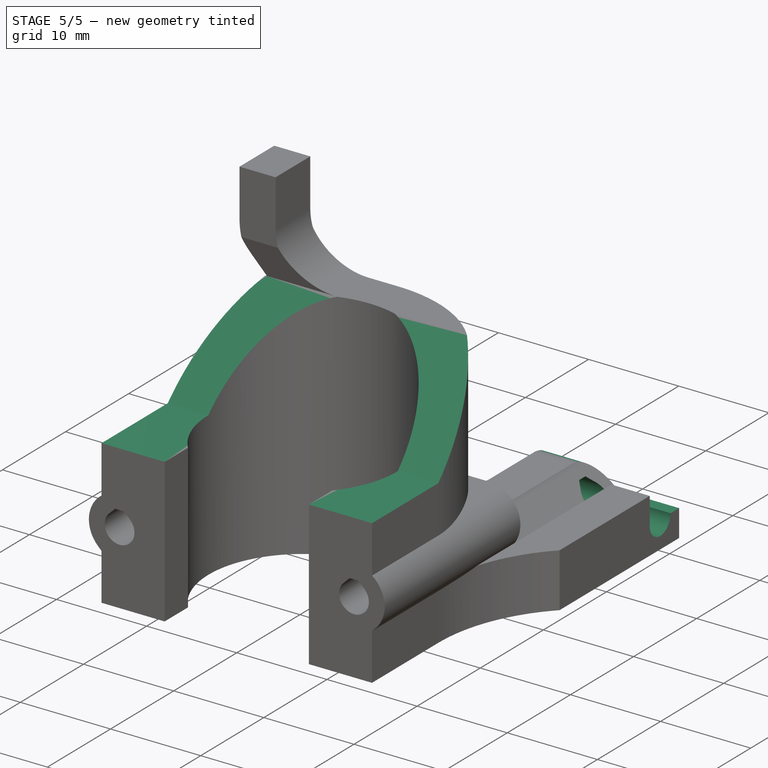
[diagram: stage 5 of 5 — iso view after this stage's code; geometry added in this stage tinted green]
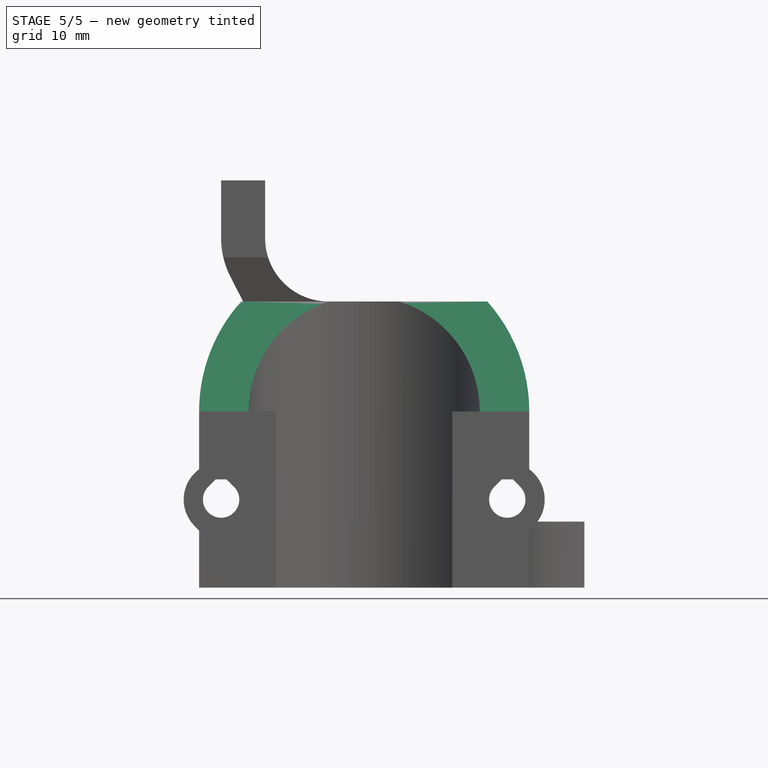
[diagram: stage 5 of 5 — front view after this stage's code; geometry added in this stage tinted green]
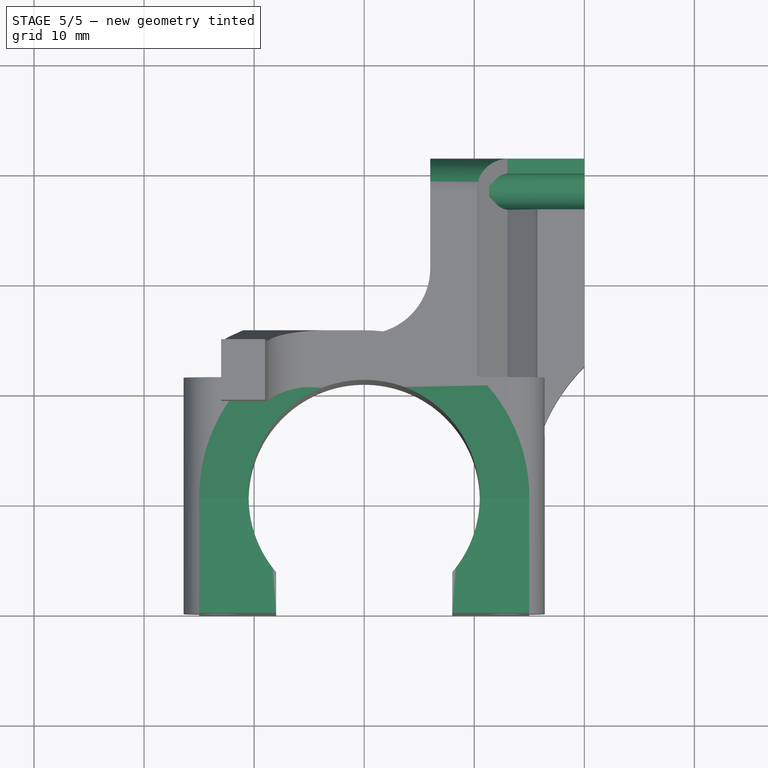
[diagram: stage 5 of 5 — top view after this stage's code; geometry added in this stage tinted green]
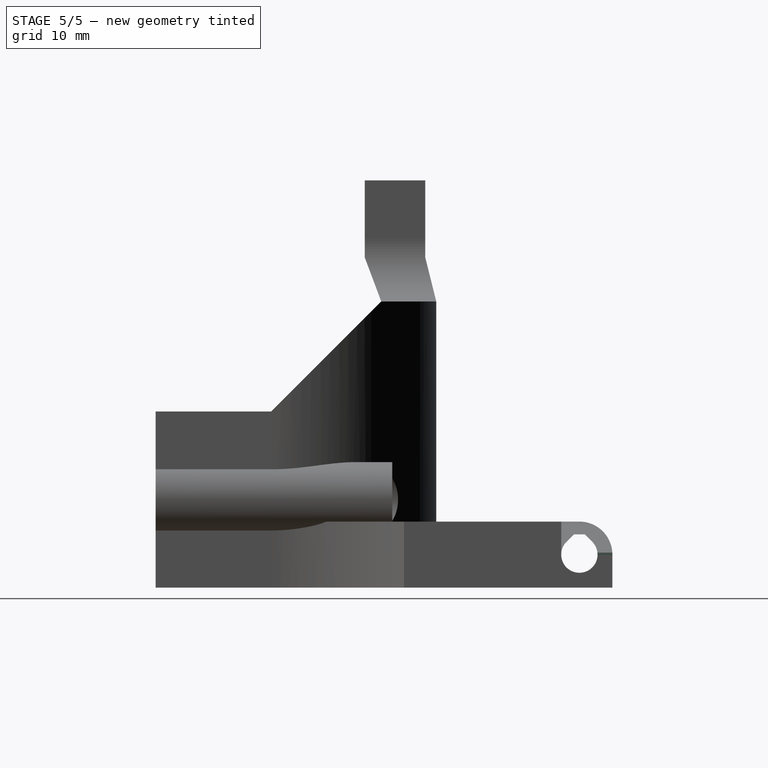
[diagram: stage 5 of 5 — right view after this stage's code; geometry added in this stage tinted green]
FEATURE [Sketcher::SketchObject] Sketch013
  MapMode = 5
  Placement = pos=(0,0,0) rot=(0.57735,0.57735,0.57735;2.0944rad)
  Support = -> [YZ_Plane005]
  expr: Constraints[42] = sheet1.BearingCentreY + sheet1.BearingDiameter / 2 - 0.5
  expr: Constraints[36] = sheet1.dy
  expr: Constraints[4] = sheet1.SideBoltZ
  expr: Constraints[3] = sheet1.M3Clearance / 2
  expr: Constraints[19] = sheet1.ShellBaseCut
  expr: Constraints[21] = sheet1.BearingCentreY
  expr: Constraints[20] = sheet1.dz
  expr: Constraints[37] = sheet1.SideBossDepth
  expr: Constraints[5] = sheet1.SideBoltY
  sketch-geometry (15):
    g0: LineSegment StartX=0 StartY=16 StartZ=0 EndX=10.5 EndY=16 EndZ=0
    g1: LineSegment StartX=10.5 StartY=16 StartZ=0 EndX=20.5 EndY=26 EndZ=0
    g2: LineSegment StartX=20.5 StartY=26 StartZ=0 EndX=0 EndY=26 EndZ=0
    g3: LineSegment StartX=0 StartY=26 StartZ=0 EndX=0 EndY=16 EndZ=0
    g4: ArcOfCircle CenterX=38.5 CenterY=3 CenterZ=0 NormalX=0 NormalY=0 NormalZ=1 AngleXU=0 Radius=1.65 StartAngle=2.35619 EndAngle=7.06858
    g5: LineSegment StartX=37.3333 StartY=4.16673 StartZ=0 EndX=38 EndY=4.83345 EndZ=0
    g6: LineSegment StartX=38 StartY=4.83345 StartZ=0 EndX=39 EndY=4.83345 EndZ=0
    g7: LineSegment StartX=39 StartY=4.83345 StartZ=0 EndX=39.6667 EndY=4.16673 EndZ=0
    g8: ArcOfCircle CenterX=38.5 CenterY=3 CenterZ=0 NormalX=0 NormalY=0 NormalZ=1 AngleXU=0 Radius=3 StartAngle=0 EndAngle=1.5708
    g9: LineSegment StartX=41.5 StartY=3 StartZ=0 EndX=41.5 EndY=0 EndZ=0
    g10: LineSegment StartX=41.5 StartY=0 StartZ=0 EndX=44.5 EndY=0 EndZ=0
    g11: LineSegment StartX=44.5 StartY=0 StartZ=0 EndX=44.5 EndY=9 EndZ=0
    g12: LineSegment StartX=44.5 StartY=9 StartZ=0 EndX=35.5 EndY=9 EndZ=0
    g13: LineSegment StartX=35.5 StartY=9 StartZ=0 EndX=35.5 EndY=6 EndZ=0
    g14: LineSegment StartX=35.5 StartY=6 StartZ=0 EndX=38.5 EndY=6 EndZ=0
  constraints (43):
    c: Coincident(g0,g1)
    c: Coincident(g1,g2)
    c: Coincident(g2,g3)
    c: Radius(g4) = 1.65
    c: DistanceY(g-1,g4) = 3
    c: DistanceX(g-2,g4) = 38.5
    c: Coincident(g5,g6)
    c: Coincident(g6,g7)
    c: Horizontal(g6)
    c: Distance(g6) = 1
    c: Tangent(g5,g4) = 1.5708
    c: Tangent(g4,g7) = 1.5708
    c: Equal(g5,g7)
    c: Angle(g5,g6) = 2.35619
    c: Coincident(g0,g3)
    c: Horizontal(g0)
    c: Horizontal(g2)
    c: PointOnObject(g0,g-2)
    c: PointOnObject(g2,g-2)
    c: DistanceY(g-1,g0) = 16
    c: DistanceY(g-1,g2) = 26
    c: DistanceX(g-2,g0) = 10.5
    c: Coincident(g9,g10)
    c: Coincident(g10,g11)
    c: Coincident(g11,g12)
    c: Coincident(g12,g13)
    c: Coincident(g13,g14)
    c: Horizontal(g14)
    c: Horizontal(g12)
    c: Horizontal(g10)
    c: Vertical(g13)
    c: Vertical(g11)
    c: Vertical(g9)
    c: Radius(g8) = 3
    c: Tangent(g8,g14) = 1.5708
    c: Tangent(g8,g9) = 1.5708
    c: DistanceX(g-2,g9) = 41.5
    c: DistanceY(g-1,g13) = 6
    c: Equal(g14,g9)
    c: Equal(g13,g10)
    c: Distance(g13) = 3
    c: PointOnObject(g9,g-1)
    c: Distance(g2) = 20.5
FEATURE [PartDesign::Pocket] Pocket003
  BaseFeature = -> Pocket002
  Length = 5
  Length2 = 100
  Profile = -> Sketch013
  Reversed = true
  Type = 1
FEATURE [Sketcher::SketchObject] Sketch014
  AttachmentOffset = pos=(0,0,40) rot=(0,0,1;0rad)
  MapMode = 5
  Placement = pos=(40,-5e-12,5e-12) rot=(0.57735,0.57735,0.57735;2.0944rad)
  Support = -> [YZ_Plane005]
  expr: Constraints[27] = sheet1.M3Clearance / 2
  expr: Constraints[11] = sheet1.SideBoltZ
  expr: Constraints[10] = sheet1.SideBoltY
  sketch-geometry (10):
    g0: LineSegment StartX=38.5 StartY=8 StartZ=0 EndX=43.5 EndY=8 EndZ=0
    g1: LineSegment StartX=43.5 StartY=8 StartZ=0 EndX=43.5 EndY=3 EndZ=0
    g2: LineSegment StartX=43.5 StartY=3 StartZ=0 EndX=38.5 EndY=3 EndZ=0
    g3: LineSegment [constr] StartX=38.5 StartY=3 StartZ=0 EndX=38.5 EndY=8 EndZ=0
    g4: LineSegment StartX=38.5 StartY=3 StartZ=0 EndX=36.85 EndY=3 EndZ=0
    g5: LineSegment StartX=36.85 StartY=3 StartZ=0 EndX=36.85 EndY=8 EndZ=0
    g6: LineSegment StartX=36.85 StartY=8 StartZ=0 EndX=38.5 EndY=8 EndZ=0
    g7: LineSegment [constr] StartX=38.5 StartY=3 StartZ=0 EndX=38.5 EndY=1.35 EndZ=0
    g8: LineSegment [constr] StartX=38.5 StartY=1.35 StartZ=0 EndX=43.5 EndY=1.35 EndZ=0
    g9: LineSegment [constr] StartX=43.5 StartY=1.35 StartZ=0 EndX=43.5 EndY=3 EndZ=0
  constraints (28):
    c: Coincident(g0,g1)
    c: Coincident(g1,g2)
    c: Coincident(g2,g3)
    c: Coincident(g3,g0)
    c: Horizontal(g0)
    c: Horizontal(g2)
    c: Vertical(g1)
    c: Vertical(g3)
    c: Equal(g3,g2)
    c: Distance(g0) = 5
    c: DistanceX(g-2,g2) = 38.5
    c: DistanceY(g-1,g2) = 3
    c: Coincident(g4,g5)
    c: Coincident(g5,g6)
    c: Coincident(g7,g8)
    c: Coincident(g8,g9)
    c: Coincident(g7,g2)
    c: Coincident(g4,g2)
    c: Coincident(g9,g1)
    c: Coincident(g6,g0)
    c: Vertical(g5)
    c: Vertical(g7)
    c: Vertical(g9)
    c: Horizontal(g4)
    c: Horizontal(g6)
    c: Horizontal(g8)
    c: Equal(g9,g6)
    c: Distance(g9) = 1.65
FEATURE [PartDesign::Pocket] Pocket004
  BaseFeature = -> Pocket003
  Length = 7
  Length2 = 100
  Profile = -> Sketch014
  Type = 0
  expr: Length = sheet1.Bolt0X
FEATURE [PartDesign::Body] Body006
  Group = -> [Sketch015,Pad003,Sketch016,Pocket005,Sketch017,Pocket006,Sketch018,Pocket007]
  Origin = -> Origin006
  Tip = -> Pocket007
FEATURE [Part::Fuse] Fusion001
  Base = -> Body005
  Tool = -> Body006
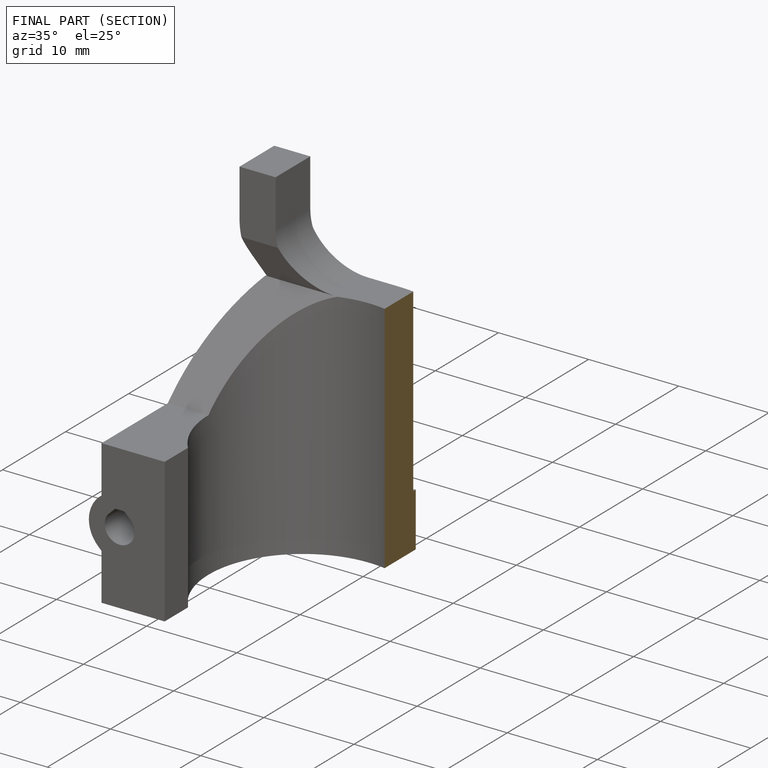
[diagram: finished part — half-section view (interior)]
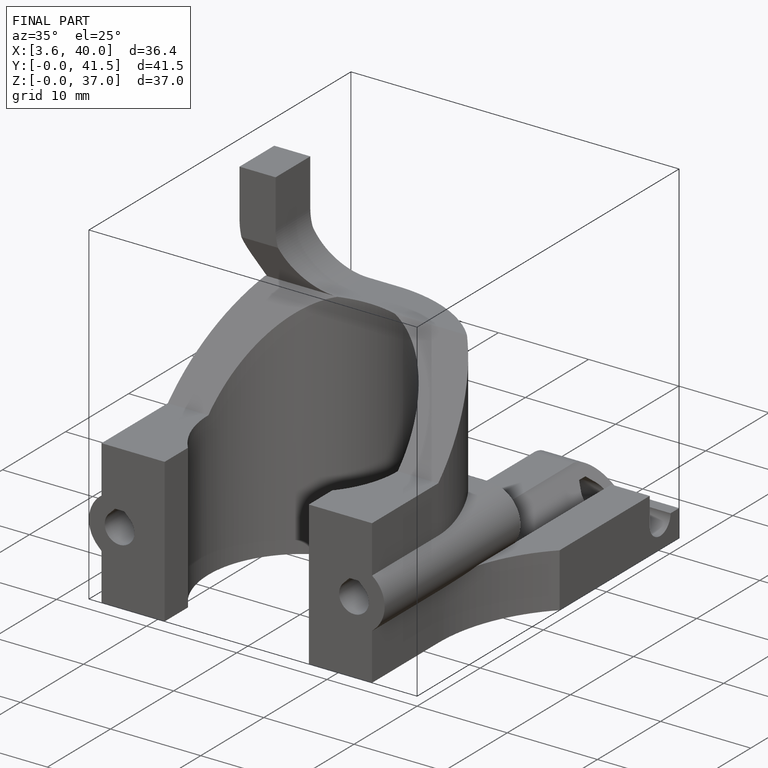
[diagram: finished part — iso view with bounding-box wireframe]
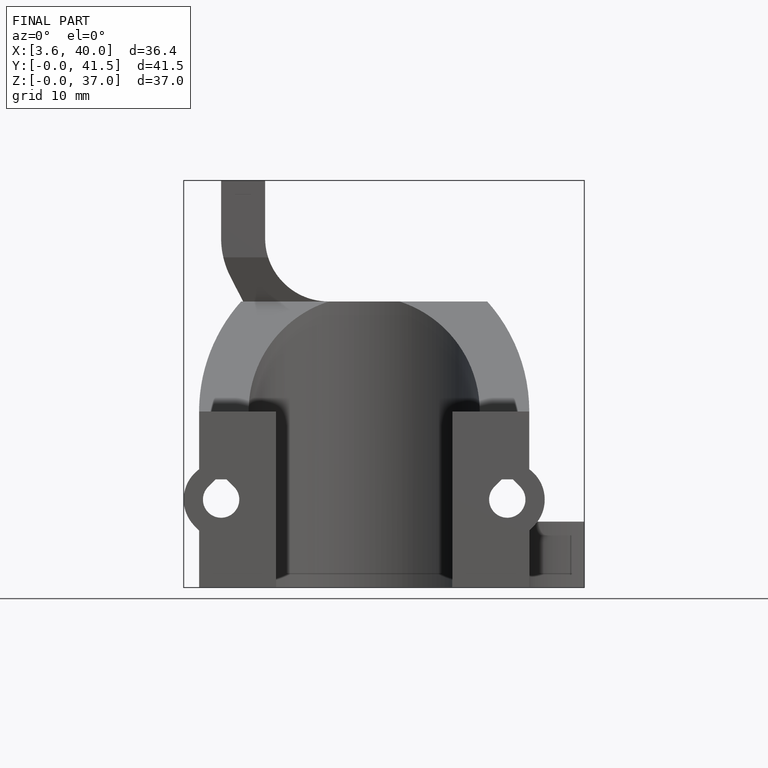
[diagram: finished part — front view with bounding-box wireframe]
